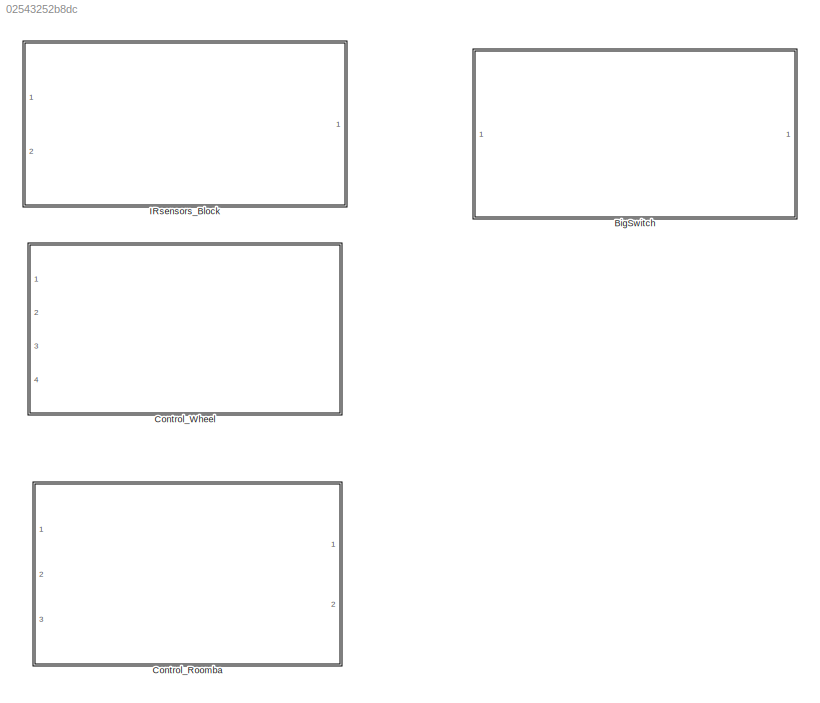
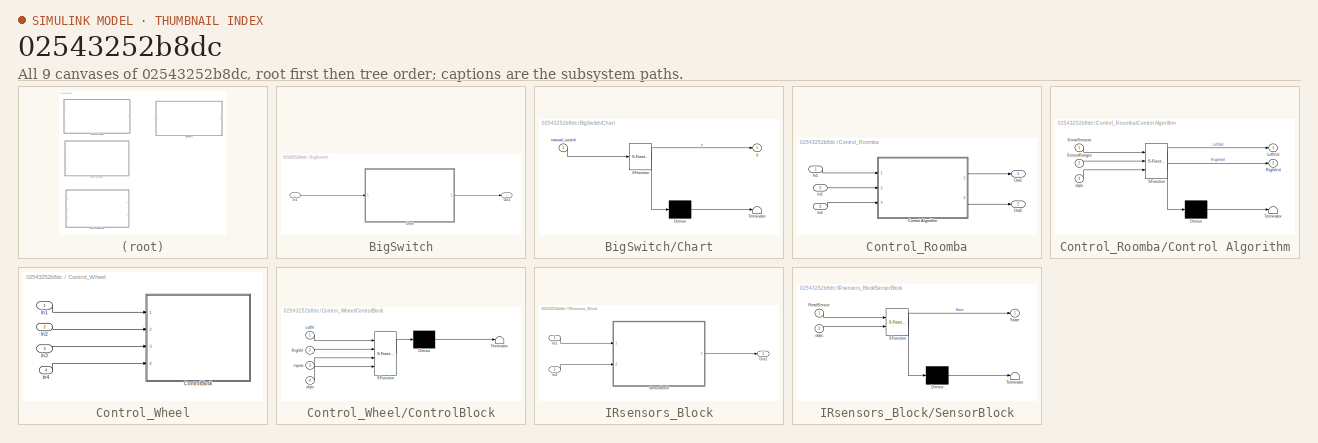
[diagram: thumbnail index - all 9 canvases of the model, root first then tree order]
MODEL slx_02543252b8dc
KIND library
CONFIG AbsTol = auto
CONFIG EnableMultiTasking = off
CONFIG FixedStep = auto
CONFIG MaxStep = auto
CONFIG MinStep = auto
CONFIG RelTol = 1e-3
CONFIG SampleTimeConstraint = Unconstrained
CONFIG Solver = VariableStepAuto
CONFIG SolverName = VariableStepAuto
CONFIG StartTime = 0.0
CONFIG StopTime = 10.0
BLOCK [SubSystem] BigSwitch
  Ports = [1, 1]
  RequestExecContextInheritance = off
  Variant = off
BLOCK [SubSystem] BigSwitch/Chart
  ErrorFcn = Stateflow.Translate.translate
  PermitHierarchicalResolution = ExplicitOnly
  Ports = [1, 1]
  RequestExecContextInheritance = off
  SFBlockType = Chart
  TreatAsAtomicUnit = on
  Variant = off
BLOCK [Demux] BigSwitch/Chart/ Demux 
  Outputs = 1
  Ports = [1, 1]
BLOCK [S-Function] BigSwitch/Chart/ SFunction 
  EnableBusSupport = on
  FunctionName = sf_sfun
  PortCounts = [1 2]
  Ports = [1, 2]
  SFcnIsStateOwnerBlock = off
  SFunctionDeploymentMode = off
  Tag = Stateflow S-Function Project1_Library 2
BLOCK [Terminator] BigSwitch/Chart/ Terminator 
BLOCK [Inport] BigSwitch/Chart/manual_switch
  IconDisplay = Port number
BLOCK [Outport] BigSwitch/Chart/y
  IconDisplay = Port number
BLOCK [Inport] BigSwitch/In1
  IconDisplay = Port number
BLOCK [Outport] BigSwitch/Out1
  IconDisplay = Port number
BLOCK [SubSystem] Control_Roomba
  Ports = [3, 2]
  RequestExecContextInheritance = off
  Variant = off
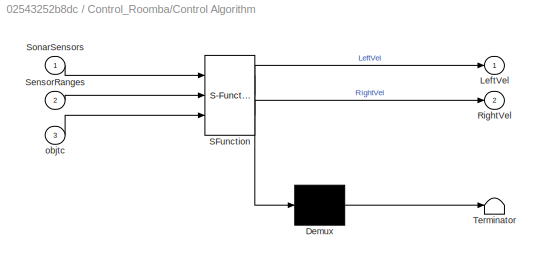
BLOCK [SubSystem] Control_Roomba/Control Algorithm
  ErrorFcn = Stateflow.Translate.translate
  PermitHierarchicalResolution = ExplicitOnly
  Ports = [3, 2]
  RequestExecContextInheritance = off
  SFBlockType = Chart
  TreatAsAtomicUnit = on
  Variant = off
BLOCK [Demux] Control_Roomba/Control Algorithm/ Demux 
  Outputs = 1
  Ports = [1, 1]
BLOCK [S-Function] Control_Roomba/Control Algorithm/ SFunction 
  EnableBusSupport = off
  FunctionName = sf_sfun
  Parameters = v0
  PortCounts = [3 3]
  Ports = [3, 3]
  SFcnIsStateOwnerBlock = off
  SFunctionDeploymentMode = off
  Tag = Stateflow S-Function Project1_Library 4
BLOCK [Terminator] Control_Roomba/Control Algorithm/ Terminator 
BLOCK [Outport] Control_Roomba/Control Algorithm/LeftVel
  IconDisplay = Port number
BLOCK [Outport] Control_Roomba/Control Algorithm/RightVel
  IconDisplay = Port number
  Port = 2
BLOCK [Inport] Control_Roomba/Control Algorithm/SensorRanges
  IconDisplay = Port number
  Port = 2
BLOCK [Inport] Control_Roomba/Control Algorithm/SonarSensors
  IconDisplay = Port number
BLOCK [Inport] Control_Roomba/Control Algorithm/objtc
  IconDisplay = Port number
  Port = 3
BLOCK [Inport] Control_Roomba/In1
  IconDisplay = Port number
BLOCK [Inport] Control_Roomba/In2
  IconDisplay = Port number
  Port = 2
BLOCK [Inport] Control_Roomba/In3
  IconDisplay = Port number
  Port = 3
BLOCK [Outport] Control_Roomba/Out1
  IconDisplay = Port number
BLOCK [Outport] Control_Roomba/Out2
  IconDisplay = Port number
  Port = 2
BLOCK [SubSystem] Control_Wheel
  Ports = [4]
  RequestExecContextInheritance = off
  Variant = off
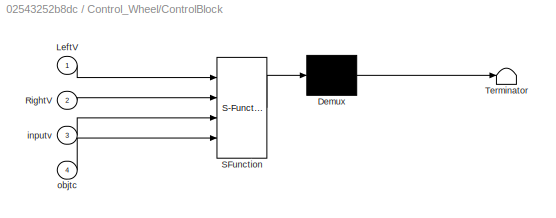
BLOCK [SubSystem] Control_Wheel/ControlBlock
  ErrorFcn = Stateflow.Translate.translate
  PermitHierarchicalResolution = ExplicitOnly
  Ports = [4]
  RequestExecContextInheritance = off
  SFBlockType = Chart
  TreatAsAtomicUnit = on
  Variant = off
BLOCK [Demux] Control_Wheel/ControlBlock/ Demux 
  Outputs = 1
  Ports = [1, 1]
BLOCK [S-Function] Control_Wheel/ControlBlock/ SFunction 
  EnableBusSupport = on
  FunctionName = sf_sfun
  PortCounts = [4 1]
  Ports = [4, 1]
  SFcnIsStateOwnerBlock = off
  SFunctionDeploymentMode = off
  Tag = Stateflow S-Function Project1_Library 3
BLOCK [Terminator] Control_Wheel/ControlBlock/ Terminator 
BLOCK [Inport] Control_Wheel/ControlBlock/LeftV
  IconDisplay = Port number
BLOCK [Inport] Control_Wheel/ControlBlock/RightV
  IconDisplay = Port number
  Port = 2
BLOCK [Inport] Control_Wheel/ControlBlock/inputv
  IconDisplay = Port number
  Port = 3
BLOCK [Inport] Control_Wheel/ControlBlock/objtc
  IconDisplay = Port number
  Port = 4
BLOCK [Inport] Control_Wheel/In1
  IconDisplay = Port number
BLOCK [Inport] Control_Wheel/In2
  IconDisplay = Port number
  Port = 2
BLOCK [Inport] Control_Wheel/In3
  IconDisplay = Port number
  Port = 3
BLOCK [Inport] Control_Wheel/In4
  IconDisplay = Port number
  Port = 4
BLOCK [SubSystem] IRsensors_Block
  Ports = [2, 1]
  RequestExecContextInheritance = off
  Variant = off
BLOCK [Inport] IRsensors_Block/In1
  IconDisplay = Port number
BLOCK [Inport] IRsensors_Block/In2
  IconDisplay = Port number
  Port = 2
BLOCK [Outport] IRsensors_Block/Out1
  IconDisplay = Port number
BLOCK [SubSystem] IRsensors_Block/SensorBlock
  ErrorFcn = Stateflow.Translate.translate
  PermitHierarchicalResolution = ExplicitOnly
  Ports = [2, 1]
  RequestExecContextInheritance = off
  SFBlockType = Chart
  TreatAsAtomicUnit = on
  Variant = off
BLOCK [Demux] IRsensors_Block/SensorBlock/ Demux 
  Outputs = 1
  Ports = [1, 1]
BLOCK [S-Function] IRsensors_Block/SensorBlock/ SFunction 
  EnableBusSupport = on
  FunctionName = sf_sfun
  PortCounts = [2 2]
  Ports = [2, 2]
  SFcnIsStateOwnerBlock = off
  SFunctionDeploymentMode = off
  Tag = Stateflow S-Function Project1_Library 1
BLOCK [Terminator] IRsensors_Block/SensorBlock/ Terminator 
BLOCK [Inport] IRsensors_Block/SensorBlock/ReadSensor
  IconDisplay = Port number
BLOCK [Outport] IRsensors_Block/SensorBlock/State
  IconDisplay = Port number
BLOCK [Inport] IRsensors_Block/SensorBlock/objtc
  IconDisplay = Port number
  Port = 2
LINE BigSwitch/Chart:1 -> BigSwitch/Out1:1
LINE BigSwitch/In1:1 -> BigSwitch/Chart:1
LINE Control_Roomba/Control Algorithm:1 -> Control_Roomba/Out1:1
LINE Control_Roomba/Control Algorithm:2 -> Control_Roomba/Out2:1
LINE Control_Roomba/In1:1 -> Control_Roomba/Control Algorithm:1
LINE Control_Roomba/In2:1 -> Control_Roomba/Control Algorithm:2
LINE Control_Roomba/In3:1 -> Control_Roomba/Control Algorithm:3
LINE Control_Wheel/In1:1 -> Control_Wheel/ControlBlock:1
LINE Control_Wheel/In2:1 -> Control_Wheel/ControlBlock:2
LINE Control_Wheel/In3:1 -> Control_Wheel/ControlBlock:3
LINE Control_Wheel/In4:1 -> Control_Wheel/ControlBlock:4
LINE IRsensors_Block/In1:1 -> IRsensors_Block/SensorBlock:1
LINE IRsensors_Block/In2:1 -> IRsensors_Block/SensorBlock:2
LINE IRsensors_Block/SensorBlock:1 -> IRsensors_Block/Out1:1
CHART IRsensors_Block/SensorBlock states=3 transitions=4
  STATE_LABEL 'A'
  STATE_LABEL "Start\nentry, during:\ncoder.extrinsic('evalin')\nso=evalin('base','objWs');\n%status = 0\n"
  STATE_LABEL "Sensor\nentry, during:\ncoder.extrinsic('RangeStateRoomba');\nState=RangeStateRoomba(so);\n%status = 1;\n"
CHART BigSwitch/Chart states=6 transitions=7
  STATE_LABEL 'tcpInit'
  STATE_LABEL "SCRIPT:\nfunction tcpInit\ncoder.extrinsic('tcpip');\ncoder.extrinsic('assignin');\npersistent obj\nif isempty(obj)\n    obj=tcpip('10.0.0.1',9001);\n    set(obj,'Terminator','LF')\n    set(obj,'InputBufferSize',1000)\n    set(obj, 'Timeout', 1)\n    set(obj, 'ByteOrder','bigEndian');\n    assignin('base','objWs',obj);\n    \nfopen(obj);\n    % Start!\nStart=[128];\nfwrite(obj,Start);\npause(.1)\nMode=[132]\nfwrite(...<+398ch>"
  STATE_LABEL 'A\nen,du:\ntcpInit;\n'
  STATE_LABEL 'Connect\nentry:\ny=1\n'
  STATE_LABEL "Disconnect\nentry: coder.extrinsic('evalin');\n so=evalin('base','objWs');\n fclose(so);"
  STATE_LABEL 'Refresh1\nentry:\ny = y + 1\nif y==4\n    y = 1\nend\n'
  STATE_LABEL 'Refresh\nentry:\ny = y + 1\n'
CHART Control_Wheel/ControlBlock states=5 transitions=8
  STATE_LABEL 'blank'
  STATE_LABEL "Connect\nentry:\ncoder.extrinsic('evalin');\nobj=evalin('base','objWs');\n%status= 0\n"
  STATE_LABEL "Reset_Stop\nentry:\ncoder.extrinsic('SetWheelVelRoomba')\nSetWheelVelRoomba(obj,0, 0)\n%status=2"
  STATE_LABEL "Update\nentry,during:\ncoder.extrinsic('SetWheelVelRoomba')\nSetWheelVelRoomba(obj,RightV, LeftV)\n%status=1"
  STATE_LABEL "start\nentry,during:\ncoder.extrinsic('SetWheelVelRoomba')\nSetWheelVelRoomba(obj,RightV, LeftV)\n%status=1"
CHART Control_Roomba/Control Algorithm states=34 transitions=49
  STATE_LABEL 'Begin'
  STATE_LABEL "Control_Roomba\nen,du:\ncoder.extrinsic('evalin');\nso=evalin('base','objWs');\ncoder.extrinsic('PowerOffRoomba');\ncoder.extrinsic('BatteryChargeReaderRoomba');\ncoder.extrinsic('BeepRoomba');\ncoder.extrinsic('BumpsWheelDropsSensorsRoomba');\nb_s= BumpsWheelDropsSensorsRoomba(so);\ncoder.extrinsic('SeekDockRoomba');\n"
  STATE_LABEL 'Controling_Logic\nen,du:\nRHS = [SonarSensors(4:6)] > SensorRanges(4:6);\nLHS = [SonarSensors(1:3)] > SensorRanges(1:3);\nMRS = [SonarSensors(5:6)] > SensorRanges(5:6);\nFRS = [SonarSensors(4:5)] > SensorRanges(4:5);\nFMS = [SonarSensors(3:4) ]> SensorRanges(3:4);\nFLS=[SonarSensors(2:3)]>SensorRanges(2:3);\nMLS=[SonarSensors(1:2)]>SensorRanges(1:2);\nRS1=[SonarSensors(6)]>SensorRanges(6);\nRS2=[SonarSensor...<+297ch>'
  STATE_LABEL 'Start\n'
  STATE_LABEL 'Choose_None3 \nen,du:\nRightVel=-v0;\nLeftVel=v0;\n'
  STATE_LABEL 'test_bump\nen,du:\nRightVel=-v0;\nLeftVel=-v0;\n'
  STATE_LABEL 'Choose_None\nen,du:\nRightVel= v0\nLeftVel= v0\n'
  STATE_LABEL 'Choose_None1\nen,du:\nRightVel= -v0\nLeftVel= v0\n'
  STATE_LABEL 'Front_S\nen,du:\nRightVel= -v0\nLeftVel= -v0\n'
  STATE_LABEL 'Choose_State\n'
  STATE_LABEL 'Choose_Between1\n\n'
  STATE_LABEL 'Choose_Between\n\n'
  STATE_LABEL 'Pick_LHS\nen,du:\nRightVel= -v0;\nLeftVel= -v0;'
  STATE_LABEL 'Pick_RHS\nen,du:\nRightVel= -v0;\nLeftVel= -v0;\n'
  STATE_LABEL 'Pick_RS3\nen,du:\nRightVel= v0;\nLeftVel= -v0 ;\n'
  STATE_LABEL 'Pick_RS2\nen,du:\nRightVel= v0;\nLeftVel= -v0;\n'
  STATE_LABEL 'Pick_MRS\nen,du:\nRightVel= v0;\nLeftVel= -v0;\n'
  STATE_LABEL 'Pick_FRS\nen,du:\nRightVel= v0;\nLeftVel= -v0;\n'
  STATE_LABEL 'Pick_RS1\nen,du:\nRightVel= v0;\nLeftVel= -v0;\n'
  STATE_LABEL 'Pick_LS3\nen,du:\nRightVel= -v0;\nLeftVel= v0;\n'
  STATE_LABEL 'Pick_MLS\nen,du:\nRightVel= -v0;\nLeftVel= v0;'
  STATE_LABEL 'Pick_FLS\nen,du:\nRightVel= -v0;\nLeftVel= v0;'
  STATE_LABEL 'Pick_LS1\nen,du:\nRightVel= -v0;\nLeftVel= v0;'
  STATE_LABEL 'Pick_LS2\nen,du:\nRightVel= -v0;\nLeftVel= v0;'
  STATE_LABEL 'Turnleft2\nen,du:\nRightVel= -v0;\nLeftVel= v0;\n'
  STATE_LABEL 'Turnleft1\nen,du:\nRightVel= v0;\nLeftVel= -v0;\n'
  STATE_LABEL 'wait2\n '
  STATE_LABEL 'Go_Straight\nen,du:\nRightVel = v0;\nLeftVel = v0;\n'
  STATE_LABEL 'Go_Straight1\nen,du:\nRightVel = v0;\nLeftVel = v0;\n'
  STATE_LABEL 'wait1\n '
  STATE_LABEL 'after(3,sec)'
  STATE_LABEL '[R_bump<1&&L_bump<1&&F_bump<1&&WD_R<1&&WD_L<1]'
  STATE_LABEL '[R_bump>0 | L_bump>0 | F_bump>0 | WD_R >0 | WD_L>0]'
  STATE_LABEL '[after(3,sec)]'
  STATE_LABEL '[RS3>0&&LS3>0]'
  STATE_LABEL '[RS3<1&&LS3<1]'
  STATE_LABEL '[LHS(1)>0 | LHS(2)>0 | LHS(3) >0]'
  STATE_LABEL '[RHS(1) >0 | RHS(2) > 0 | RHS(3)>0]'
  STATE_LABEL '[LHS(1)>0&&LHS(2)>0&&LHS(3)>0]'
  STATE_LABEL '[RHS(1)>0&&RHS(2)>0&&RHS(3)>0]'
